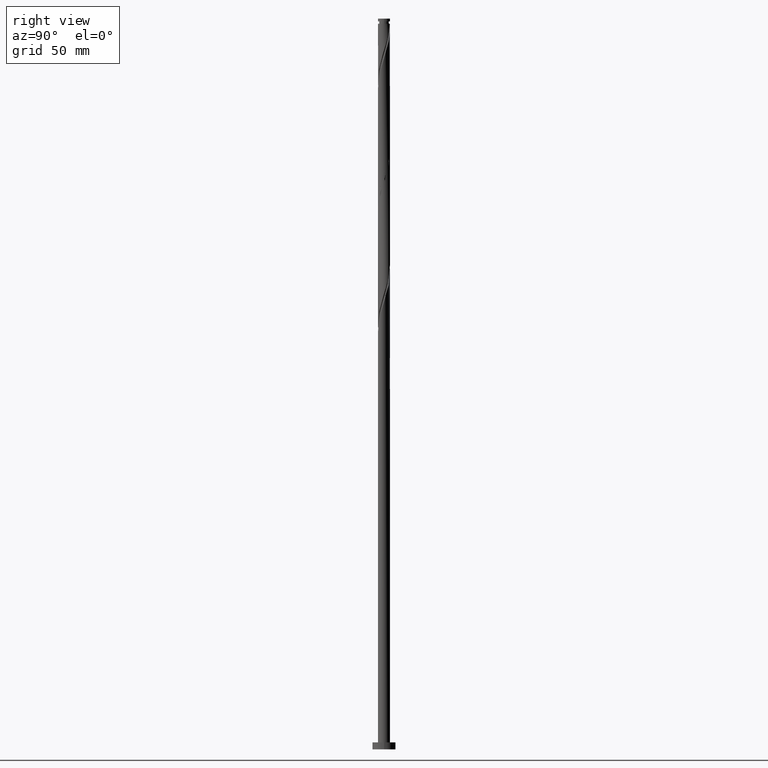
[diagram: clean part render]
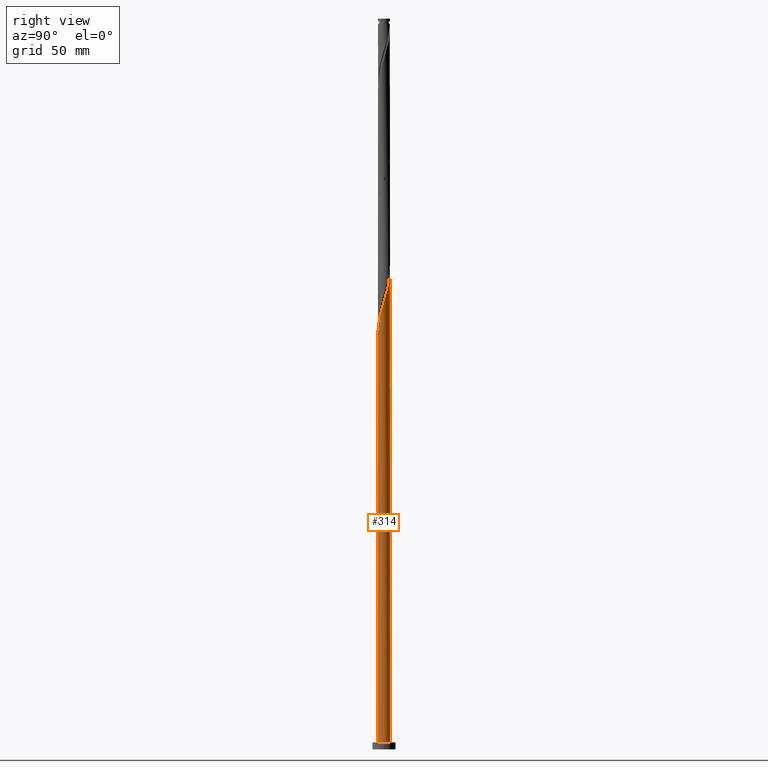
[diagram: same view with one face highlighted and labeled with its STEP entity id]
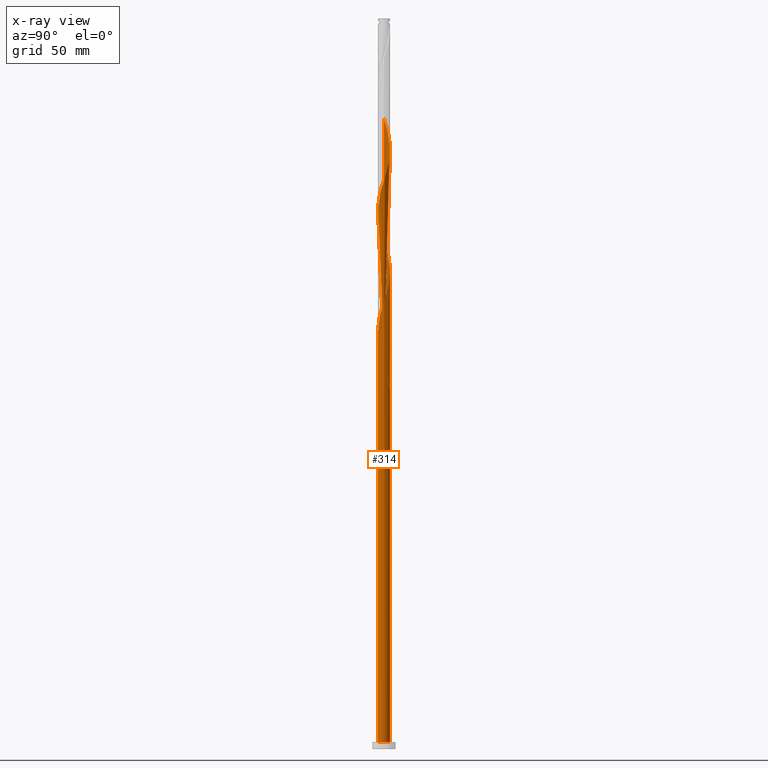
[diagram: x-ray of the same camera — body ghosted, the highlighted face saturated]
A machine part, right view. The second image highlights one B-rep face of the part: STEP entity #314.
The next image is the same camera in x-ray: the body ghosted, the highlighted face saturated — about 0% of this face is hidden behind the body in this view.
In plain terms, the highlighted cylindrical surface (bore or boss wall) has radius 2.6 mm, axis along (-0, -0, -1).
Its self-contained STEP definition (entity closure, byte-faithful):
#5 = CARTESIAN_POINT ( 'NONE',  ( -1.444941135775472008, -2.181275912834382602, 227.4975577271217730 ) ) ;
#12 = CARTESIAN_POINT ( 'NONE',  ( -0.3554268301776153383, -2.592198152564242353, 178.7475577271218015 ) ) ;
#15 = CARTESIAN_POINT ( 'NONE',  ( 0.2303028164299621428, 2.606296243045286953, 156.2475577271217730 ) ) ;
#20 = CARTESIAN_POINT ( 'NONE',  ( -1.338325226974177218, 2.248267128392908987, 158.1225577271218867 ) ) ;
#22 = CARTESIAN_POINT ( 'NONE',  ( -1.993166516690926704, 1.669517066921501813, 213.4350577271218583 ) ) ;
#30 = CARTESIAN_POINT ( 'NONE',  ( 2.520157287600512497, -0.6393803607822549084, 243.4350577271218583 ) ) ;
#31 = EDGE_CURVE ( 'NONE', #921, #1142, #1130, .T. ) ;
#38 = DIRECTION ( 'NONE',  ( -0.000000000000000000, -0.000000000000000000, -1.000000000000000000 ) ) ;
#42 = CARTESIAN_POINT ( 'NONE',  ( -0.3554268301776153383, -2.592198152564242353, 231.2475577271218015 ) ) ;
#55 = CARTESIAN_POINT ( 'NONE',  ( -2.600000000000003197, -1.570937663140591017E-15, 271.7605406492156703 ) ) ;
#62 = CARTESIAN_POINT ( 'NONE',  ( 2.600000000000000089, 0.000000000000000000, 3.000000000000000000 ) ) ;
#64 = CARTESIAN_POINT ( 'NONE',  ( 2.314696167735581511, -1.184137513581183354, 241.5600577271218015 ) ) ;
#74 = CARTESIAN_POINT ( 'NONE',  ( -0.8044841181609284630, 2.489703756954713132, 261.2475577271218299 ) ) ;
#79 = CYLINDRICAL_SURFACE ( 'NONE', #942, 2.600000000000000089 ) ;
#112 = DIRECTION ( 'NONE',  ( -1.000000000000000000, 0.000000000000000000, 0.000000000000000000 ) ) ;
#117 = CARTESIAN_POINT ( 'NONE',  ( -2.489703756954713132, -0.8044841181609284630, 169.3725577271217730 ) ) ;
#124 = CARTESIAN_POINT ( 'NONE',  ( -2.600000000000000089, 0.000000000000000000, 315.0000000000000000 ) ) ;
#147 = CARTESIAN_POINT ( 'NONE',  ( -0.8044841181609284630, 2.489703756954713132, 208.7475577271217730 ) ) ;
#148 = EDGE_CURVE ( 'NONE', #1441, #953, #1453, .T. ) ;
#155 = CARTESIAN_POINT ( 'NONE',  ( 1.993166516690926260, -1.669517066921501813, 187.1850577271217730 ) ) ;
#161 = CARTESIAN_POINT ( 'NONE',  ( -1.669517066921501813, -1.993166516690926704, 174.0600577271217730 ) ) ;
#163 = CARTESIAN_POINT ( 'NONE',  ( 0.5173934672954455527, 2.547999999999998266, 155.3100577271217730 ) ) ;
#169 = CARTESIAN_POINT ( 'NONE',  ( 1.894092998067532729, 1.805057120547470362, 199.3725577271218015 ) ) ;
#175 = CARTESIAN_POINT ( 'NONE',  ( -2.592198152564242353, 0.3554268301776153383, 165.6225577271218015 ) ) ;
#180 = CARTESIAN_POINT ( 'NONE',  ( -0.5173934672954447755, 2.548000000000003151, 260.3100577271217730 ) ) ;
#185 = CARTESIAN_POINT ( 'NONE',  ( -2.600000000000000089, 0.000000000000000000, 315.0000000000000000 ) ) ;
#189 = CARTESIAN_POINT ( 'NONE',  ( -1.805057120547471028, 1.894092998067532507, 264.9975577271218299 ) ) ;
#195 = EDGE_LOOP ( 'NONE', ( #365, #1433, #247, #945, #1206, #396, #300, #1642, #1086 ) ) ;
#208 = CARTESIAN_POINT ( 'NONE',  ( 1.571691173760823901, -2.071180063230220636, 237.8100577271218015 ) ) ;
#216 = CARTESIAN_POINT ( 'NONE',  ( 2.592198152564242353, -0.3554268301776155048, 244.3725577271217730 ) ) ;
#231 = CARTESIAN_POINT ( 'NONE',  ( -1.805057120547471028, 1.894092998067532507, 159.9975577271218299 ) ) ;
#243 = CARTESIAN_POINT ( 'NONE',  ( -1.894092998067528733, 1.805057120547468807, 163.7475577271218299 ) ) ;
#247 = ORIENTED_EDGE ( 'NONE', *, *, #373, .T. ) ;
#263 = CARTESIAN_POINT ( 'NONE',  ( -2.547999999999998266, 0.5173934672954451086, 168.4350577271217730 ) ) ;
#286 = CARTESIAN_POINT ( 'NONE',  ( -2.248267128392908987, -1.338325226974176996, 223.7475577271218015 ) ) ;
#295 = CARTESIAN_POINT ( 'NONE',  ( -1.669517066921501813, -1.993166516690926704, 226.5600577271218015 ) ) ;
#300 = ORIENTED_EDGE ( 'NONE', *, *, #416, .F. ) ;
#302 = CARTESIAN_POINT ( 'NONE',  ( 2.248267128392908987, 1.338325226974176774, 197.4975577271218583 ) ) ;
#309 = CARTESIAN_POINT ( 'NONE',  ( 1.071404672567552341, -2.368985442673811281, 183.4350577271218015 ) ) ;
#314 = ADVANCED_FACE ( 'NONE', ( #1337 ), #79, .T. ) ;
#320 = CARTESIAN_POINT ( 'NONE',  ( -2.520157287600512497, 0.6393803607822545754, 217.1850577271217730 ) ) ;
#322 = CARTESIAN_POINT ( 'NONE',  ( -0.06256200687382600101, 2.599247197804762877, 157.1850577271218015 ) ) ;
#329 = CARTESIAN_POINT ( 'NONE',  ( 2.248267128392908987, 1.338325226974176774, 249.9975577271218299 ) ) ;
#339 = CARTESIAN_POINT ( 'NONE',  ( 2.181275912834382602, -1.444941135775472008, 240.6225577271218015 ) ) ;
#350 = CARTESIAN_POINT ( 'NONE',  ( 0.8044841181609282410, -2.489703756954713132, 234.9975577271217446 ) ) ;
#358 = CARTESIAN_POINT ( 'NONE',  ( 1.894092998067532729, 1.805057120547470362, 251.8725577271218015 ) ) ;
#365 = ORIENTED_EDGE ( 'NONE', *, *, #31, .F. ) ;
#366 = CARTESIAN_POINT ( 'NONE',  ( 1.444941135775472008, 2.181275912834382602, 253.7475577271217730 ) ) ;
#373 = EDGE_CURVE ( 'NONE', #523, #953, #927, .T. ) ;
#387 = VECTOR ( 'NONE', #38, 1000.000000000000000 ) ;
#396 = ORIENTED_EDGE ( 'NONE', *, *, #373, .F. ) ;
#416 = EDGE_CURVE ( 'NONE', #879, #523, #1244, .T. ) ;
#420 = CARTESIAN_POINT ( 'NONE',  ( 2.606296243045292282, 0.2303028164299616709, 193.7475577271218015 ) ) ;
#431 = CARTESIAN_POINT ( 'NONE',  ( 0.6393803607822551305, 2.520157287600512497, 204.0600577271218015 ) ) ;
#438 = CARTESIAN_POINT ( 'NONE',  ( -0.6393803607822549084, -2.520157287600512497, 177.8100577271218015 ) ) ;
#447 = CARTESIAN_POINT ( 'NONE',  ( -1.571691173760823901, 2.071180063230220636, 211.5600577271217730 ) ) ;
#456 = CARTESIAN_POINT ( 'NONE',  ( -1.805057120547471028, 1.894092998067532507, 212.4975577271218299 ) ) ;
#467 = CARTESIAN_POINT ( 'NONE',  ( 2.071180063230220636, 1.571691173760823901, 250.9350577271217730 ) ) ;
#471 = CIRCLE ( 'NONE', #1486, 2.600000000000000089 ) ;
#478 = CARTESIAN_POINT ( 'NONE',  ( -2.600000000000003197, 0.03128553263262053019, 271.6601779609906089 ) ) ;
#485 = CARTESIAN_POINT ( 'NONE',  ( 1.071404672567552341, -2.368985442673811281, 235.9350577271217446 ) ) ;
#494 = CARTESIAN_POINT ( 'NONE',  ( -2.599247197804768206, 0.06256200687382661163, 271.5600577271218299 ) ) ;
#503 = CARTESIAN_POINT ( 'NONE',  ( -0.6393803607822549084, -2.520157287600512497, 230.3100577271218299 ) ) ;
#523 = VERTEX_POINT ( 'NONE', #1098 ) ;
#534 = CARTESIAN_POINT ( 'NONE',  ( -2.600000000000003197, -1.955276331319881009E-15, 166.7605406492157840 ) ) ;
#536 = CARTESIAN_POINT ( 'NONE',  ( -2.599999999999999201, 2.664250573592375680E-15, 170.1095748050278189 ) ) ;
#549 = CARTESIAN_POINT ( 'NONE',  ( -2.599999999999997868, 0.2613098319674014292, 169.2713037260643034 ) ) ;
#556 = CARTESIAN_POINT ( 'NONE',  ( -1.894092998067532729, -1.805057120547470806, 173.1225577271218015 ) ) ;
#559 = CARTESIAN_POINT ( 'NONE',  ( -2.489703756954709135, 0.8044841181609280190, 167.4975577271217730 ) ) ;
#565 = CARTESIAN_POINT ( 'NONE',  ( -1.184137513581183354, -2.314696167735581511, 175.9350577271218015 ) ) ;
#575 = CARTESIAN_POINT ( 'NONE',  ( -1.184137513581183354, -2.314696167735581511, 228.4350577271218299 ) ) ;
#582 = CARTESIAN_POINT ( 'NONE',  ( -0.2303028164299615321, 2.606296243045292282, 206.8725577271218015 ) ) ;
#591 = CARTESIAN_POINT ( 'NONE',  ( 0.06256200687382726389, 2.599247197804768206, 205.9350577271218299 ) ) ;
#595 = CARTESIAN_POINT ( 'NONE',  ( -1.571691173760823901, 2.071180063230220636, 159.0600577271218015 ) ) ;
#600 = CARTESIAN_POINT ( 'NONE',  ( 2.606296243045292282, 0.2303028164299616709, 246.2475577271217730 ) ) ;
#609 = CARTESIAN_POINT ( 'NONE',  ( 2.548000000000003151, 0.5173934672954449976, 247.1850577271218583 ) ) ;
#624 = CARTESIAN_POINT ( 'NONE',  ( -1.338325226974177218, 2.248267128392908987, 263.1225577271217730 ) ) ;
#634 = CARTESIAN_POINT ( 'NONE',  ( -2.448116422636781753, 0.9233338913868941455, 268.7475577271217730 ) ) ;
#642 = VECTOR ( 'NONE', #1101, 1000.000000000000000 ) ;
#687 = EDGE_CURVE ( 'NONE', #1142, #1757, #1432, .T. ) ;
#688 = CARTESIAN_POINT ( 'NONE',  ( -2.368985442673811281, -1.071404672567552563, 222.8100577271218015 ) ) ;
#698 = CARTESIAN_POINT ( 'NONE',  ( -1.071404672567552563, 2.368985442673811281, 209.6850577271218299 ) ) ;
#706 = CARTESIAN_POINT ( 'NONE',  ( -2.548000000000003151, -0.5173934672954453307, 220.9350577271217730 ) ) ;
#713 = CARTESIAN_POINT ( 'NONE',  ( 0.8044841181609282410, -2.489703756954713132, 182.4975577271217446 ) ) ;
#723 = CARTESIAN_POINT ( 'NONE',  ( 2.314696167735581511, -1.184137513581183354, 189.0600577271217730 ) ) ;
#725 = CARTESIAN_POINT ( 'NONE',  ( -0.3554268301776142835, 2.592198152564238356, 158.1225577271217730 ) ) ;
#729 = CARTESIAN_POINT ( 'NONE',  ( -2.599247197804768206, 0.06256200687382661163, 166.5600577271218583 ) ) ;
#742 = DIRECTION ( 'NONE',  ( 1.000000000000000000, 0.000000000000000000, 0.000000000000000000 ) ) ;
#746 = CARTESIAN_POINT ( 'NONE',  ( -2.600000000000003197, -1.570937663140591017E-15, 271.7605406492156703 ) ) ;
#747 = AXIS2_PLACEMENT_3D ( 'NONE', #1557, #1186, #1151 ) ;
#755 = CARTESIAN_POINT ( 'NONE',  ( 0.3554268301776158379, 2.592198152564242353, 257.4975577271217162 ) ) ;
#763 = CARTESIAN_POINT ( 'NONE',  ( -1.071404672567552563, 2.368985442673811281, 262.1850577271218299 ) ) ;
#774 = CARTESIAN_POINT ( 'NONE',  ( 0.9233338913868948117, 2.448116422636781753, 255.6225577271218015 ) ) ;
#780 = CARTESIAN_POINT ( 'NONE',  ( -2.520157287600512497, 0.6393803607822545754, 164.6850577271217730 ) ) ;
#791 = CARTESIAN_POINT ( 'NONE',  ( -2.448116422636781753, 0.9233338913868941455, 163.7475577271218299 ) ) ;
#821 = CARTESIAN_POINT ( 'NONE',  ( -1.184137513581179801, 2.314696167735579291, 160.9350577271218015 ) ) ;
#846 = CARTESIAN_POINT ( 'NONE',  ( 2.548000000000003151, 0.5173934672954449976, 194.6850577271218299 ) ) ;
#854 = CARTESIAN_POINT ( 'NONE',  ( 1.571691173760823901, -2.071180063230220636, 185.3100577271217730 ) ) ;
#862 = CARTESIAN_POINT ( 'NONE',  ( -0.06256200687382673653, -2.599247197804768206, 179.6850577271218299 ) ) ;
#869 = CARTESIAN_POINT ( 'NONE',  ( 2.368985442673811281, 1.071404672567552119, 196.5600577271218015 ) ) ;
#879 = VERTEX_POINT ( 'NONE', #1334 ) ;
#880 = CARTESIAN_POINT ( 'NONE',  ( 2.071180063230220636, 1.571691173760823901, 198.4350577271217730 ) ) ;
#905 = CARTESIAN_POINT ( 'NONE',  ( 1.338325226974176774, -2.248267128392908987, 236.8725577271218015 ) ) ;
#914 = CARTESIAN_POINT ( 'NONE',  ( 2.489703756954713132, 0.8044841181609280190, 248.1225577271218299 ) ) ;
#918 = CARTESIAN_POINT ( 'NONE',  ( 0.000000000000000000, 0.000000000000000000, 3.000000000000000000 ) ) ;
#921 = VERTEX_POINT ( 'NONE', #55 ) ;
#927 = LINE ( 'NONE', #185, #387 ) ;
#939 = CARTESIAN_POINT ( 'NONE',  ( -2.248267128392905434, 1.338325226974175886, 165.6225577271217730 ) ) ;
#942 = AXIS2_PLACEMENT_3D ( 'NONE', #1753, #1605, #1193 ) ;
#945 = ORIENTED_EDGE ( 'NONE', *, *, #1655, .T. ) ;
#953 = VERTEX_POINT ( 'NONE', #1171 ) ;
#979 = CARTESIAN_POINT ( 'NONE',  ( 2.489703756954713132, 0.8044841181609280190, 195.6225577271218015 ) ) ;
#988 = CARTESIAN_POINT ( 'NONE',  ( -2.599247197804768206, 0.06256200687382661163, 219.0600577271218015 ) ) ;
#996 = CARTESIAN_POINT ( 'NONE',  ( 0.2303028164299617542, -2.606296243045292282, 180.6225577271218583 ) ) ;
#1003 = CARTESIAN_POINT ( 'NONE',  ( 0.3554268301776158379, 2.592198152564242353, 204.9975577271218583 ) ) ;
#1008 = CARTESIAN_POINT ( 'NONE',  ( -2.314696167735581511, 1.184137513581183354, 162.8100577271217730 ) ) ;
#1011 = CARTESIAN_POINT ( 'NONE',  ( -1.444941135775472008, -2.181275912834382602, 174.9975577271217446 ) ) ;
#1025 = CARTESIAN_POINT ( 'NONE',  ( 0.5173934672954455527, 2.547999999999998266, 155.3100577271217730 ) ) ;
#1035 = CARTESIAN_POINT ( 'NONE',  ( 2.599247197804768206, -0.06256200687382695858, 245.3100577271217730 ) ) ;
#1048 = CARTESIAN_POINT ( 'NONE',  ( -1.071404672567552563, 2.368985442673811281, 157.1850577271218015 ) ) ;
#1053 = CARTESIAN_POINT ( 'NONE',  ( -2.599999999999999201, 2.664250573592375680E-15, 170.1095748050278189 ) ) ;
#1070 = EDGE_CURVE ( 'NONE', #523, #921, #1121, .T. ) ;
#1086 = ORIENTED_EDGE ( 'NONE', *, *, #687, .F. ) ;
#1088 = CARTESIAN_POINT ( 'NONE',  ( -2.600000000000002753, -0.2613098319673991532, 167.5988117281793279 ) ) ;
#1091 = CARTESIAN_POINT ( 'NONE',  ( -1.669517066921498705, 1.993166516690923817, 162.8100577271217730 ) ) ;
#1098 = CARTESIAN_POINT ( 'NONE',  ( -2.600000000000003197, -1.955276331319881009E-15, 166.7605406492157840 ) ) ;
#1101 = DIRECTION ( 'NONE',  ( -0.000000000000000000, -0.000000000000000000, -1.000000000000000000 ) ) ;
#1110 = CARTESIAN_POINT ( 'NONE',  ( 2.181275912834382602, -1.444941135775472008, 188.1225577271217730 ) ) ;
#1118 = CARTESIAN_POINT ( 'NONE',  ( 2.592198152564242353, -0.3554268301776155048, 191.8725577271218015 ) ) ;
#1121 =( BOUNDED_CURVE ( )  B_SPLINE_CURVE ( 2, ( #534, #1088, #1638, #117, #1682, #1549, #1394, #556, #161, #1011, #565, #1676, #438, #12, #862, #996, #1402, #713, #309, #1795, #854, #1690, #155, #1110, #723, #1543, #1660, #1118, #1413, #420, #846, #979, #869, #302, #880, #169, #1278, #1668, #1259, #1267, #431, #1003, #591, #582, #1133, #147, #698, #1525, #447, #456, #22, #1249, #1143, #1559, #320, #1240, #988, #1422, #706, #1805, #688, #286, #1533, #1387, #295, #5, #575, #1127, #503, #42, #1169, #1720, #1312, #350, #485, #905, #208, #1598, #1287, #339, #64, #1442, #30, #216, #1035, #600, #609, #914, #1154, #329, #467, #358, #1590, #366, #1463, #774, #1162, #755, #1451, #1712, #180, #74, #763, #624, #1434, #189, #1700, #1178, #1188, #634, #1730, #1739, #494, #478, #746 ),
 .UNSPECIFIED., .F., .T. ) 
 B_SPLINE_CURVE_WITH_KNOTS ( ( 3, 2, 2, 2, 2, 2, 2, 2, 2, 2, 2, 2, 2, 2, 2, 2, 2, 2, 2, 2, 2, 2, 2, 2, 2, 2, 2, 2, 2, 2, 2, 2, 2, 2, 2, 2, 2, 2, 2, 2, 2, 2, 2, 2, 2, 2, 2, 2, 2, 2, 2, 2, 2, 2, 2, 2, 2, 3 ),
 ( 0.05453034012992213214, 0.06250000000000000000, 0.07142857142857139685, 0.08035714285714290472, 0.08928571428571430157, 0.09821428571428569843, 0.1071428571428570953, 0.1160714285714286031, 0.1250000000000000000, 0.1339285714285713969, 0.1428571428571429047, 0.1517857142857143016, 0.1607142857142856984, 0.1696428571428570953, 0.1785714285714286031, 0.1875000000000000000, 0.1964285714285713969, 0.2053571428571429047, 0.2142857142857143016, 0.2232142857142856984, 0.2321428571428570953, 0.2410714285714286031, 0.2500000000000000000, 0.2589285714285713969, 0.2678571428571429047, 0.2767857142857143016, 0.2857142857142856984, 0.2946428571428570953, 0.3035714285714286031, 0.3125000000000000000, 0.3214285714285713969, 0.3303571428571429047, 0.3392857142857143016, 0.3482142857142856984, 0.3571428571428570953, 0.3660714285714286031, 0.3750000000000000000, 0.3839285714285713969, 0.3928571428571429047, 0.4017857142857143016, 0.4107142857142856984, 0.4196428571428570953, 0.4285714285714286031, 0.4375000000000000000, 0.4464285714285713969, 0.4553571428571429047, 0.4642857142857143016, 0.4732142857142856984, 0.4821428571428570953, 0.4910714285714286031, 0.5000000000000000000, 0.5089285714285713969, 0.5178571428571427937, 0.5267857142857143016, 0.5357142857142856984, 0.5446428571428572063, 0.5535714285714286031, 0.5545303401299218615 ),
 .UNSPECIFIED. ) 
 CURVE ( )  GEOMETRIC_REPRESENTATION_ITEM ( )  RATIONAL_B_SPLINE_CURVE ( ( 0.9079949616362249509, 0.9039886423360878887, 0.9090909090909548018, 0.9033747362666294523, 0.9090909090909548018, 0.9033747362666294523, 0.9090909090909548018, 0.9033747362666294523, 0.9090909090909548018, 0.9033747362666294523, 0.9090909090909548018, 0.9033747362666294523, 0.9090909090909548018, 0.9033747362666294523, 0.9090909090909548018, 0.9033747362666294523, 0.9090909090909548018, 0.9033747362666294523, 0.9090909090909548018, 0.9033747362666294523, 0.9090909090909548018, 0.9033747362666294523, 0.9090909090909548018, 0.9033747362666294523, 0.9090909090909548018, 0.9033747362666294523, 0.9090909090909548018, 0.9033747362666294523, 0.9090909090909548018, 0.9033747362666294523, 0.9090909090909548018, 0.9033747362666294523, 0.9090909090909548018, 0.9033747362666294523, 0.9090909090909548018, 0.9033747362666294523, 0.9090909090909548018, 0.9033747362666294523, 0.9090909090909548018, 0.9033747362666294523, 0.9090909090909548018, 0.9033747362666294523, 0.9090909090909548018, 0.9033747362666294523, 0.9090909090909548018, 0.9033747362666294523, 0.9090909090909548018, 0.9033747362666294523, 0.9090909090909548018, 0.9033747362666294523, 0.9090909090909548018, 0.9033747362666294523, 0.9090909090909548018, 0.9033747362666294523, 0.9090909090909548018, 0.9033747362666294523, 0.9090909090909548018, 0.9033747362666294523, 0.9090909090909548018, 0.9033747362666294523, 0.9090909090909548018, 0.9033747362666294523, 0.9090909090909548018, 0.9033747362666294523, 0.9090909090909548018, 0.9033747362666294523, 0.9090909090909548018, 0.9033747362666294523, 0.9090909090909548018, 0.9033747362666294523, 0.9090909090909548018, 0.9033747362666294523, 0.9090909090909548018, 0.9033747362666294523, 0.9090909090909548018, 0.9033747362666294523, 0.9090909090909548018, 0.9033747362666294523, 0.9090909090909548018, 0.9033747362666294523, 0.9090909090909548018, 0.9033747362666294523, 0.9090909090909548018, 0.9033747362666294523, 0.9090909090909548018, 0.9033747362666294523, 0.9090909090909548018, 0.9033747362666294523, 0.9090909090909548018, 0.9033747362666294523, 0.9090909090909548018, 0.9033747362666294523, 0.9090909090909548018, 0.9033747362666294523, 0.9090909090909548018, 0.9033747362666294523, 0.9090909090909548018, 0.9033747362666294523, 0.9090909090909548018, 0.9033747362666294523, 0.9090909090909548018, 0.9033747362666294523, 0.9090909090909548018, 0.9033747362666294523, 0.9090909090909548018, 0.9033747362666294523, 0.9090909090909548018, 0.9033747362666294523, 0.9090909090909548018, 0.9033747362666294523, 0.9090909090909548018, 0.9033747362666294523, 0.9090909090909548018, 0.9084770030214966985, 0.9079949616362250620 ) ) 
 REPRESENTATION_ITEM ( '' )  );
#1127 = CARTESIAN_POINT ( 'NONE',  ( -0.9233338913868942566, -2.448116422636782197, 229.3725577271217446 ) ) ;
#1130 = LINE ( 'NONE', #124, #642 ) ;
#1133 = CARTESIAN_POINT ( 'NONE',  ( -0.5173934672954447755, 2.548000000000003151, 207.8100577271217730 ) ) ;
#1140 = CARTESIAN_POINT ( 'NONE',  ( -1.993166516690926704, 1.669517066921501813, 160.9350577271217730 ) ) ;
#1142 = VERTEX_POINT ( 'NONE', #1053 ) ;
#1143 = CARTESIAN_POINT ( 'NONE',  ( -2.314696167735581511, 1.184137513581183354, 215.3100577271217730 ) ) ;
#1149 = CARTESIAN_POINT ( 'NONE',  ( -2.600000000000002753, 0.03128553263261169004, 166.6601779609906373 ) ) ;
#1151 = DIRECTION ( 'NONE',  ( 1.000000000000000000, 0.000000000000000000, 0.000000000000000000 ) ) ;
#1154 = CARTESIAN_POINT ( 'NONE',  ( 2.368985442673811281, 1.071404672567552119, 249.0600577271217730 ) ) ;
#1162 = CARTESIAN_POINT ( 'NONE',  ( 0.6393803607822551305, 2.520157287600512497, 256.5600577271217730 ) ) ;
#1169 = CARTESIAN_POINT ( 'NONE',  ( -0.06256200687382673653, -2.599247197804768206, 232.1850577271218015 ) ) ;
#1171 = CARTESIAN_POINT ( 'NONE',  ( -2.600000000000000089, 0.000000000000000000, 3.000000000000000000 ) ) ;
#1178 = CARTESIAN_POINT ( 'NONE',  ( -2.181275912834383490, 1.444941135775471563, 266.8725577271218299 ) ) ;
#1186 = DIRECTION ( 'NONE',  ( 0.000000000000000000, 0.000000000000000000, 1.000000000000000000 ) ) ;
#1188 = CARTESIAN_POINT ( 'NONE',  ( -2.314696167735581511, 1.184137513581183354, 267.8100577271218299 ) ) ;
#1193 = DIRECTION ( 'NONE',  ( -1.000000000000000000, 0.000000000000000000, 0.000000000000000000 ) ) ;
#1206 = ORIENTED_EDGE ( 'NONE', *, *, #148, .T. ) ;
#1240 = CARTESIAN_POINT ( 'NONE',  ( -2.592198152564242353, 0.3554268301776153383, 218.1225577271218299 ) ) ;
#1241 = EDGE_CURVE ( 'NONE', #879, #1757, #471, .T. ) ;
#1244 =( BOUNDED_CURVE ( )  B_SPLINE_CURVE ( 2, ( #1274, #1478, #1048, #20, #595, #231, #1140, #1555, #1008, #791, #780, #175, #729, #1149, #1696 ),
 .UNSPECIFIED., .F., .T. ) 
 B_SPLINE_CURVE_WITH_KNOTS ( ( 3, 2, 2, 2, 2, 2, 2, 3 ),
 ( 0.000000000000000000, 0.008928571428571396851, 0.01785714285714290472, 0.02678571428571430157, 0.03571428571428569843, 0.04464285714285709528, 0.05357142857142860315, 0.05453034012992213214 ),
 .UNSPECIFIED. ) 
 CURVE ( )  GEOMETRIC_REPRESENTATION_ITEM ( )  RATIONAL_B_SPLINE_CURVE ( ( 0.9090909090909548018, 0.9033747362666294523, 0.9090909090909548018, 0.9033747362666294523, 0.9090909090909548018, 0.9033747362666294523, 0.9090909090909548018, 0.9033747362666294523, 0.9090909090909548018, 0.9033747362666294523, 0.9090909090909548018, 0.9033747362666294523, 0.9090909090909548018, 0.9084770030214965875, 0.9079949616362249509 ) ) 
 REPRESENTATION_ITEM ( '' )  );
#1249 = CARTESIAN_POINT ( 'NONE',  ( -2.181275912834383490, 1.444941135775471563, 214.3725577271217730 ) ) ;
#1259 = CARTESIAN_POINT ( 'NONE',  ( 1.184137513581183354, 2.314696167735581511, 202.1850577271217446 ) ) ;
#1261 = CARTESIAN_POINT ( 'NONE',  ( -0.6393803607822531321, 2.520157287600507612, 159.0600577271217730 ) ) ;
#1267 = CARTESIAN_POINT ( 'NONE',  ( 0.9233338913868948117, 2.448116422636781753, 203.1225577271218015 ) ) ;
#1274 = CARTESIAN_POINT ( 'NONE',  ( -0.5173934672954446645, 2.548000000000002707, 155.3100577271217730 ) ) ;
#1278 = CARTESIAN_POINT ( 'NONE',  ( 1.669517066921501813, 1.993166516690926260, 200.3100577271218299 ) ) ;
#1287 = CARTESIAN_POINT ( 'NONE',  ( 1.993166516690926260, -1.669517066921501813, 239.6850577271218299 ) ) ;
#1312 = CARTESIAN_POINT ( 'NONE',  ( 0.5173934672954451086, -2.548000000000003151, 234.0600577271217730 ) ) ;
#1334 = CARTESIAN_POINT ( 'NONE',  ( -0.5173934672954446645, 2.548000000000002707, 155.3100577271217730 ) ) ;
#1337 = FACE_OUTER_BOUND ( 'NONE', #195, .T. ) ;
#1363 = CARTESIAN_POINT ( 'NONE',  ( -0.9233338913868922582, 2.448116422636778200, 159.9975577271218015 ) ) ;
#1387 = CARTESIAN_POINT ( 'NONE',  ( -1.894092998067532729, -1.805057120547470806, 225.6225577271218299 ) ) ;
#1394 = CARTESIAN_POINT ( 'NONE',  ( -2.071180063230220636, -1.571691173760823901, 172.1850577271218015 ) ) ;
#1402 = CARTESIAN_POINT ( 'NONE',  ( 0.5173934672954451086, -2.548000000000003151, 181.5600577271217730 ) ) ;
#1413 = CARTESIAN_POINT ( 'NONE',  ( 2.599247197804768206, -0.06256200687382695858, 192.8100577271217730 ) ) ;
#1422 = CARTESIAN_POINT ( 'NONE',  ( -2.606296243045292282, -0.2303028164299619485, 219.9975577271218299 ) ) ;
#1432 =( BOUNDED_CURVE ( )  B_SPLINE_CURVE ( 2, ( #536, #549, #263, #559, #1663, #939, #1489, #243, #1091, #1640, #821, #1363, #1261, #725, #322, #15, #163 ),
 .UNSPECIFIED., .F., .T. ) 
 B_SPLINE_CURVE_WITH_KNOTS ( ( 3, 2, 2, 2, 2, 2, 2, 2, 3 ),
 ( 0.9295303401299221946, 0.9375000000000000000, 0.9464285714285713969, 0.9553571428571429047, 0.9642857142857143016, 0.9732142857142856984, 0.9821428571428570953, 0.9910714285714286031, 1.000000000000000000 ),
 .UNSPECIFIED. ) 
 CURVE ( )  GEOMETRIC_REPRESENTATION_ITEM ( )  RATIONAL_B_SPLINE_CURVE ( ( 0.9079949616362184006, 0.9039886423360815604, 0.9090909090909484735, 0.9033747362666231240, 0.9090909090909484735, 0.9033747362666231240, 0.9090909090909484735, 0.9033747362666231240, 0.9090909090909484735, 0.9033747362666231240, 0.9090909090909484735, 0.9033747362666231240, 0.9090909090909484735, 0.9033747362666231240, 0.9090909090909484735, 0.9033747362666231240, 0.9090909090909484735 ) ) 
 REPRESENTATION_ITEM ( '' )  );
#1433 = ORIENTED_EDGE ( 'NONE', *, *, #1070, .F. ) ;
#1434 = CARTESIAN_POINT ( 'NONE',  ( -1.571691173760823901, 2.071180063230220636, 264.0600577271218299 ) ) ;
#1441 = VERTEX_POINT ( 'NONE', #62 ) ;
#1442 = CARTESIAN_POINT ( 'NONE',  ( 2.448116422636782197, -0.9233338913868942566, 242.4975577271217730 ) ) ;
#1451 = CARTESIAN_POINT ( 'NONE',  ( 0.06256200687382726389, 2.599247197804768206, 258.4350577271217730 ) ) ;
#1453 = CIRCLE ( 'NONE', #1539, 2.600000000000000089 ) ;
#1463 = CARTESIAN_POINT ( 'NONE',  ( 1.184137513581183354, 2.314696167735581511, 254.6850577271218015 ) ) ;
#1467 = DIRECTION ( 'NONE',  ( 0.000000000000000000, 0.000000000000000000, 1.000000000000000000 ) ) ;
#1478 = CARTESIAN_POINT ( 'NONE',  ( -0.8044841181609284630, 2.489703756954713132, 156.2475577271217446 ) ) ;
#1486 = AXIS2_PLACEMENT_3D ( 'NONE', #1782, #1501, #112 ) ;
#1489 = CARTESIAN_POINT ( 'NONE',  ( -2.071180063230216639, 1.571691173760821680, 164.6850577271217446 ) ) ;
#1501 = DIRECTION ( 'NONE',  ( 0.000000000000000000, -0.000000000000000000, -1.000000000000000000 ) ) ;
#1525 = CARTESIAN_POINT ( 'NONE',  ( -1.338325226974177218, 2.248267128392908987, 210.6225577271217730 ) ) ;
#1533 = CARTESIAN_POINT ( 'NONE',  ( -2.071180063230220636, -1.571691173760823901, 224.6850577271217730 ) ) ;
#1539 = AXIS2_PLACEMENT_3D ( 'NONE', #918, #1467, #742 ) ;
#1543 = CARTESIAN_POINT ( 'NONE',  ( 2.448116422636782197, -0.9233338913868942566, 189.9975577271218015 ) ) ;
#1549 = CARTESIAN_POINT ( 'NONE',  ( -2.248267128392908987, -1.338325226974176996, 171.2475577271218015 ) ) ;
#1555 = CARTESIAN_POINT ( 'NONE',  ( -2.181275912834383490, 1.444941135775471563, 161.8725577271217730 ) ) ;
#1557 = CARTESIAN_POINT ( 'NONE',  ( 0.000000000000000000, 0.000000000000000000, 3.000000000000000000 ) ) ;
#1559 = CARTESIAN_POINT ( 'NONE',  ( -2.448116422636781753, 0.9233338913868941455, 216.2475577271217446 ) ) ;
#1590 = CARTESIAN_POINT ( 'NONE',  ( 1.669517066921501813, 1.993166516690926260, 252.8100577271218299 ) ) ;
#1598 = CARTESIAN_POINT ( 'NONE',  ( 1.805057120547470806, -1.894092998067532729, 238.7475577271218299 ) ) ;
#1605 = DIRECTION ( 'NONE',  ( -0.000000000000000000, -0.000000000000000000, -1.000000000000000000 ) ) ;
#1638 = CARTESIAN_POINT ( 'NONE',  ( -2.548000000000003151, -0.5173934672954453307, 168.4350577271217446 ) ) ;
#1640 = CARTESIAN_POINT ( 'NONE',  ( -1.444941135775468455, 2.181275912834379938, 161.8725577271217730 ) ) ;
#1642 = ORIENTED_EDGE ( 'NONE', *, *, #1241, .T. ) ;
#1655 = EDGE_CURVE ( 'NONE', #953, #1441, #1694, .T. ) ;
#1660 = CARTESIAN_POINT ( 'NONE',  ( 2.520157287600512497, -0.6393803607822549084, 190.9350577271217730 ) ) ;
#1663 = CARTESIAN_POINT ( 'NONE',  ( -2.368985442673806840, 1.071404672567551675, 166.5600577271218299 ) ) ;
#1668 = CARTESIAN_POINT ( 'NONE',  ( 1.444941135775472008, 2.181275912834382602, 201.2475577271218015 ) ) ;
#1676 = CARTESIAN_POINT ( 'NONE',  ( -0.9233338913868942566, -2.448116422636782197, 176.8725577271217446 ) ) ;
#1682 = CARTESIAN_POINT ( 'NONE',  ( -2.368985442673811281, -1.071404672567552563, 170.3100577271218299 ) ) ;
#1690 = CARTESIAN_POINT ( 'NONE',  ( 1.805057120547470806, -1.894092998067532729, 186.2475577271218299 ) ) ;
#1694 = CIRCLE ( 'NONE', #747, 2.600000000000000089 ) ;
#1696 = CARTESIAN_POINT ( 'NONE',  ( -2.600000000000003197, -1.955276331319881009E-15, 166.7605406492157840 ) ) ;
#1700 = CARTESIAN_POINT ( 'NONE',  ( -1.993166516690926704, 1.669517066921501813, 265.9350577271217730 ) ) ;
#1712 = CARTESIAN_POINT ( 'NONE',  ( -0.2303028164299615321, 2.606296243045292282, 259.3725577271218299 ) ) ;
#1720 = CARTESIAN_POINT ( 'NONE',  ( 0.2303028164299617542, -2.606296243045292282, 233.1225577271218015 ) ) ;
#1730 = CARTESIAN_POINT ( 'NONE',  ( -2.520157287600512497, 0.6393803607822545754, 269.6850577271218867 ) ) ;
#1739 = CARTESIAN_POINT ( 'NONE',  ( -2.592198152564242353, 0.3554268301776153383, 270.6225577271218299 ) ) ;
#1753 = CARTESIAN_POINT ( 'NONE',  ( 0.000000000000000000, 0.000000000000000000, 315.0000000000000000 ) ) ;
#1757 = VERTEX_POINT ( 'NONE', #1025 ) ;
#1782 = CARTESIAN_POINT ( 'NONE',  ( 0.000000000000000000, 0.000000000000000000, 155.3100577271217730 ) ) ;
#1795 = CARTESIAN_POINT ( 'NONE',  ( 1.338325226974176774, -2.248267128392908987, 184.3725577271218299 ) ) ;
#1805 = CARTESIAN_POINT ( 'NONE',  ( -2.489703756954713132, -0.8044841181609284630, 221.8725577271217730 ) ) ;